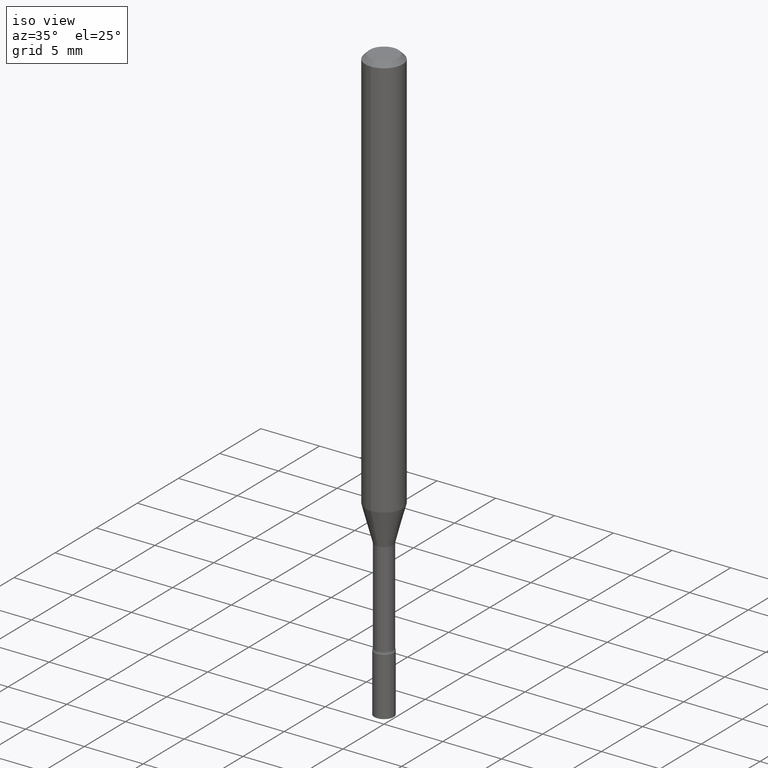
[diagram: clean part render]
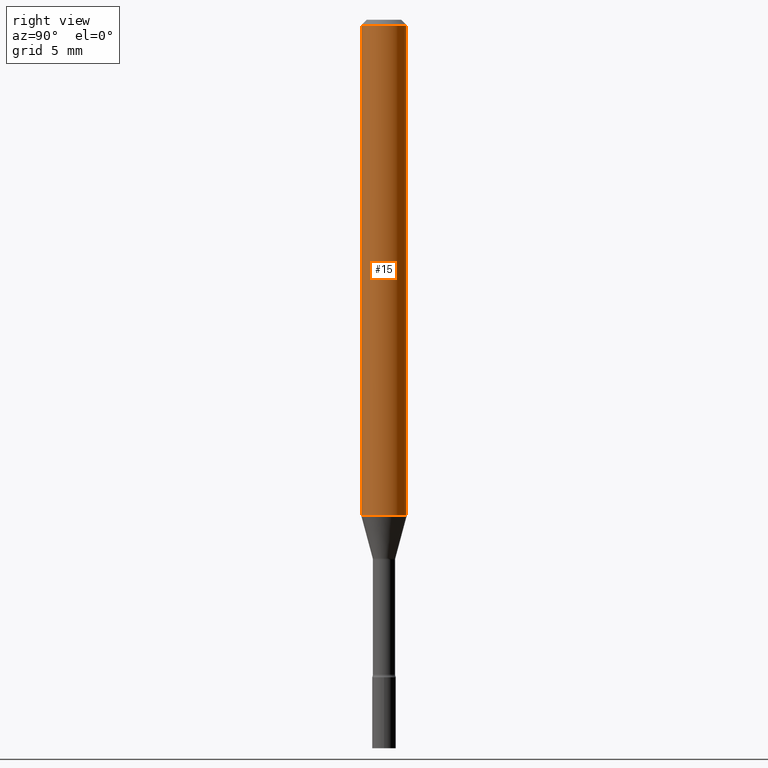
[diagram: tour spotlight — one face highlighted and labeled with its STEP entity id]
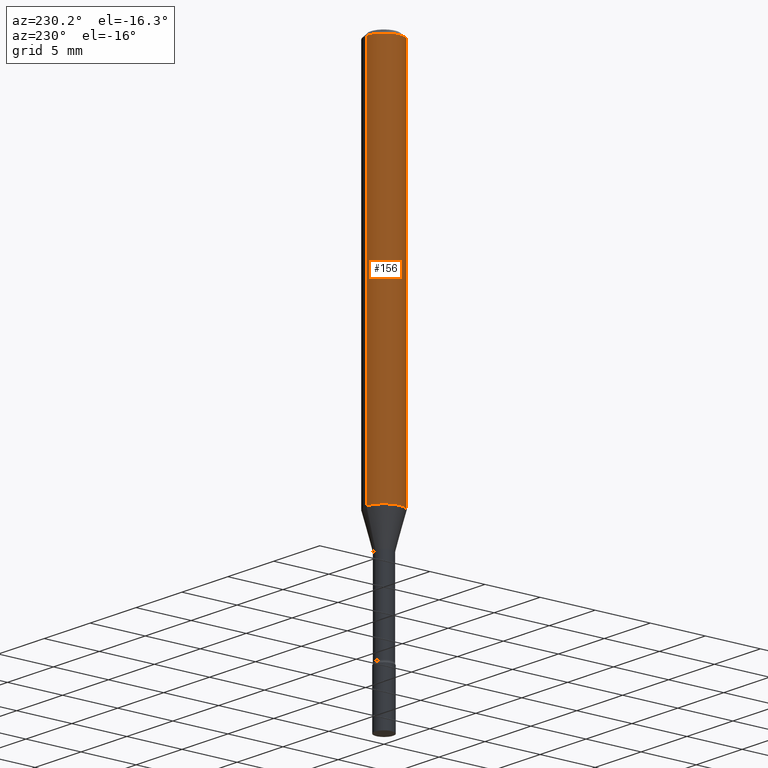
[diagram: tour spotlight — one face highlighted and labeled with its STEP entity id]
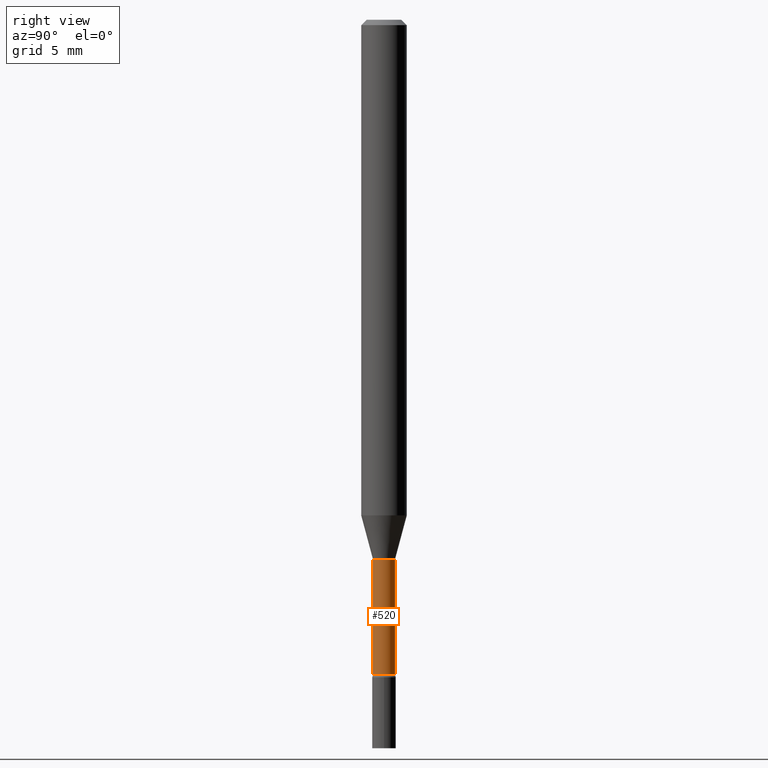
[diagram: tour spotlight — one face highlighted and labeled with its STEP entity id]
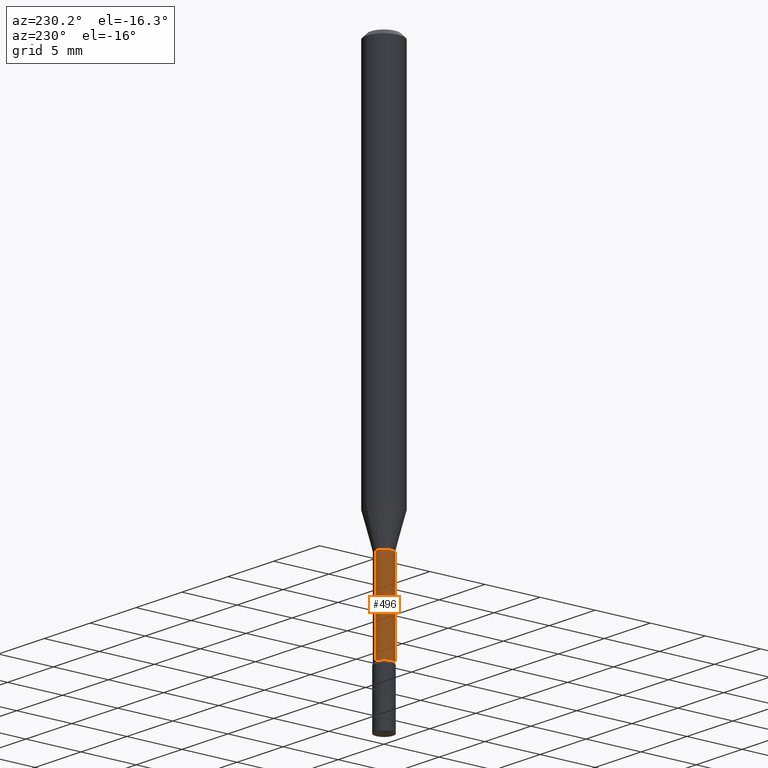
[diagram: tour spotlight — one face highlighted and labeled with its STEP entity id]
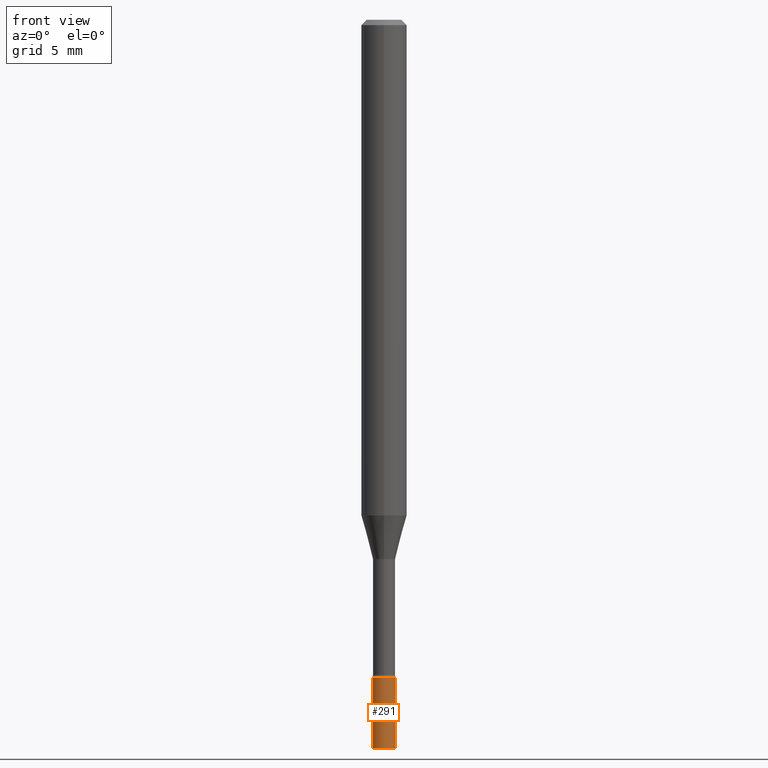
[diagram: tour spotlight — one face highlighted and labeled with its STEP entity id]
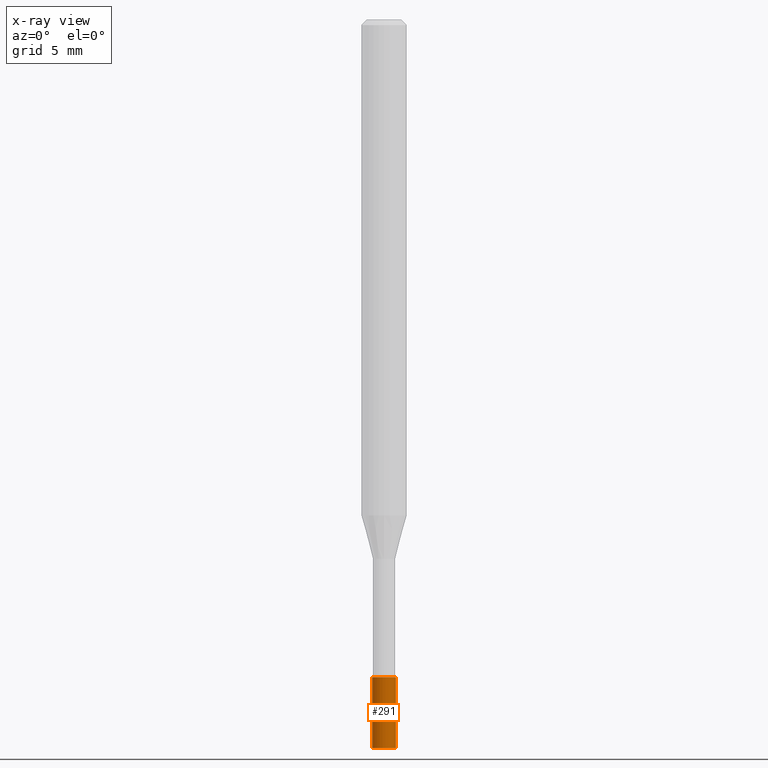
[diagram: x-ray of the same camera — body ghosted, this tour face saturated]
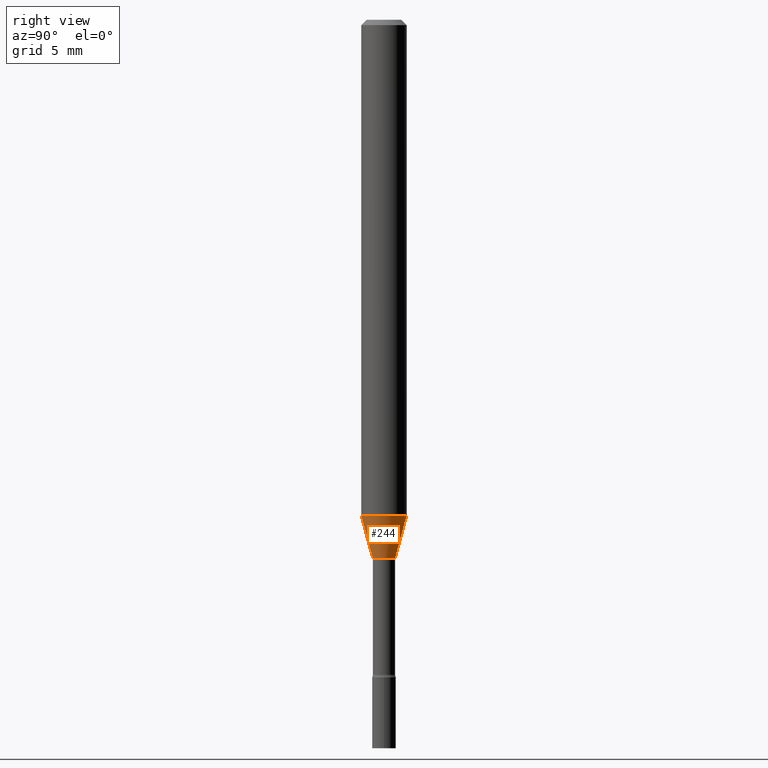
[diagram: tour spotlight — one face highlighted and labeled with its STEP entity id]
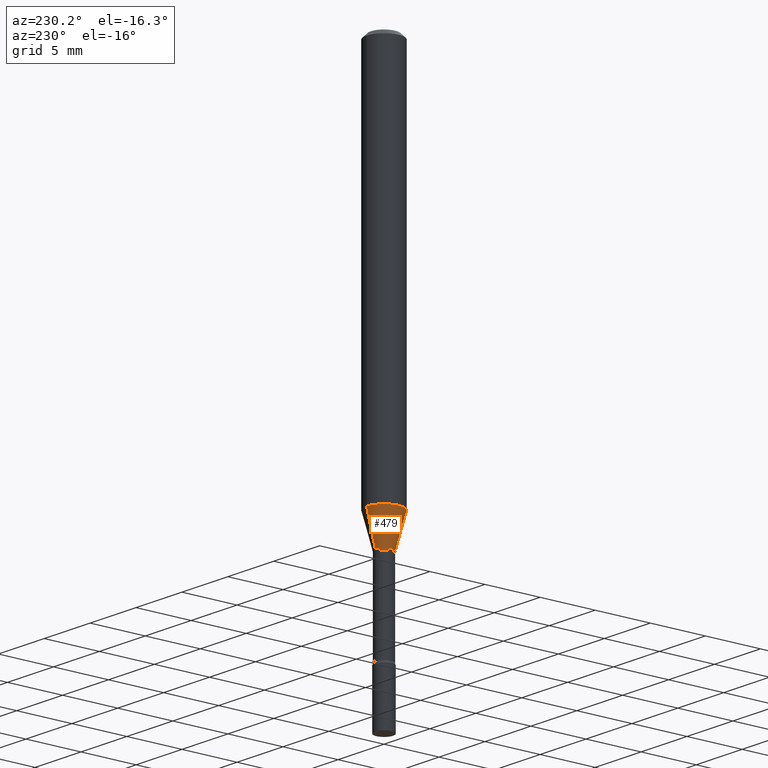
[diagram: tour spotlight — one face highlighted and labeled with its STEP entity id]
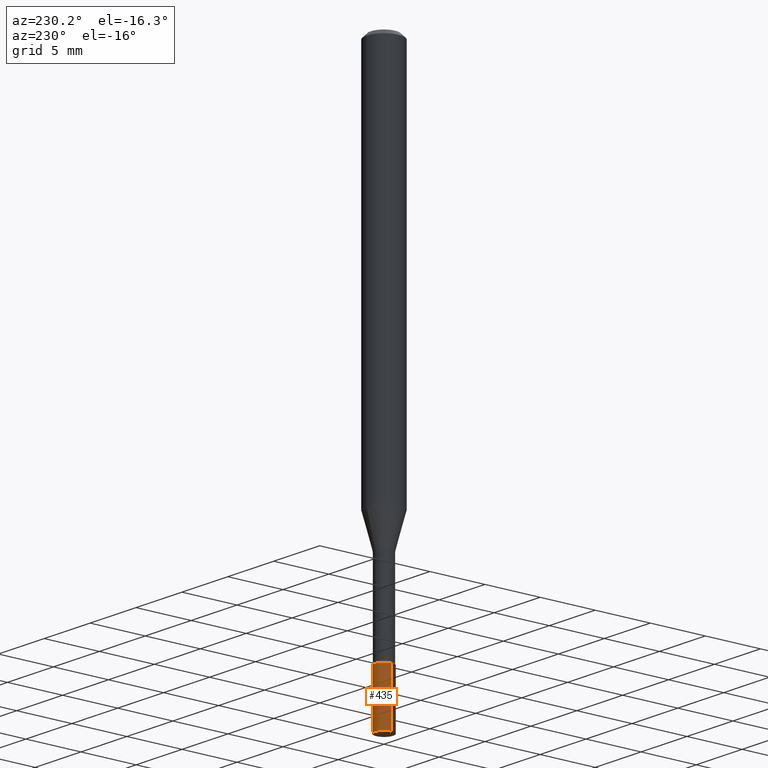
[diagram: tour spotlight — one face highlighted and labeled with its STEP entity id]
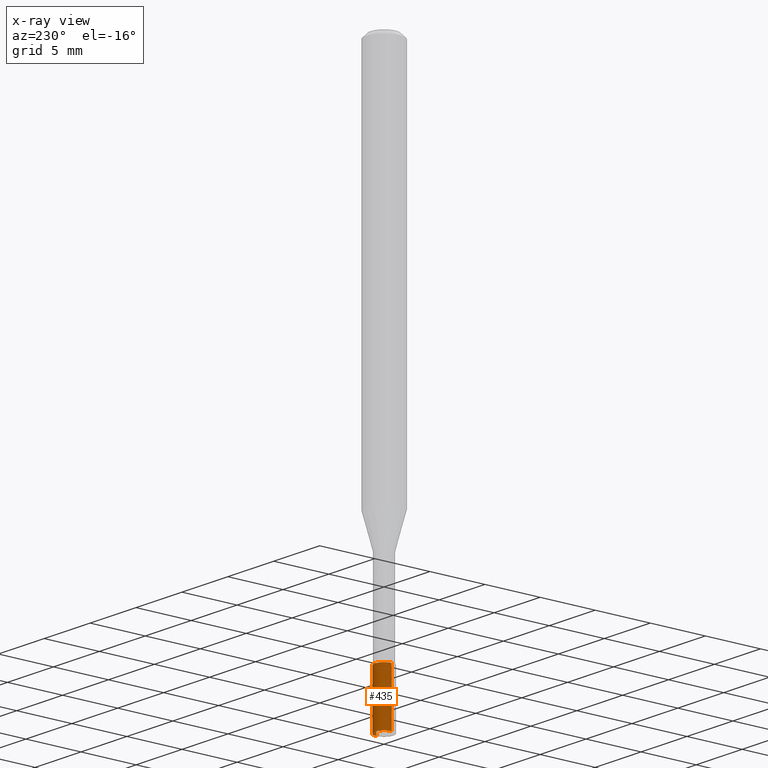
[diagram: x-ray of the same camera — body ghosted, this tour face saturated]
A machine part: a face-by-face anatomy tour. The part has 18 B-rep faces; the first image is the clean iso view, then the 8 largest visible faces are spotlighted one at a time (largest first), each with its STEP entity span.

Face 1 — right view, entity #15. In plain terms, the highlighted cylindrical surface (edge-blend (fillet) strip) has radius 1.5875 mm, axis along (-0, 0, 1).
Definition (entity closure, byte-faithful):
#15 = ADVANCED_FACE ( 'NONE', ( #234 ), #114, .T. ) ;
#47 = ORIENTED_EDGE ( 'NONE', *, *, #314, .F. ) ;
#58 = CARTESIAN_POINT ( 'NONE',  ( -4.364351673553916201E-16, -0.06250000000000000000, 2.181873595343755987E-16 ) ) ;
#63 = LINE ( 'NONE', #58, #107 ) ;
#95 = ORIENTED_EDGE ( 'NONE', *, *, #109, .T. ) ;
#97 = CARTESIAN_POINT ( 'NONE',  ( 4.440892098500956497E-16, 0.06249999999999521910, -1.360760976698174973 ) ) ;
#99 = VERTEX_POINT ( 'NONE', #315 ) ;
#107 = VECTOR ( 'NONE', #221, 39.37007874015748143 ) ;
#109 = EDGE_CURVE ( 'NONE', #379, #488, #392, .T. ) ;
#114 = CYLINDRICAL_SURFACE ( 'NONE', #318, 0.06250000000000000000 ) ;
#123 = AXIS2_PLACEMENT_3D ( 'NONE', #252, #454, #184 ) ;
#131 = CIRCLE ( 'NONE', #123, 0.06250000000000000000 ) ;
#141 = CARTESIAN_POINT ( 'NONE',  ( 3.668709739033173181E-31, -5.236496628825025190E-17, -0.01500000000000003067 ) ) ;
#145 = DIRECTION ( 'NONE',  ( -2.445806492688777345E-29, 3.490997752550010367E-15, 1.000000000000000000 ) ) ;
#155 = CARTESIAN_POINT ( 'NONE',  ( 0.000000000000000000, 0.000000000000000000, 0.000000000000000000 ) ) ;
#182 = EDGE_LOOP ( 'NONE', ( #341, #95, #381, #47 ) ) ;
#184 = DIRECTION ( 'NONE',  ( -6.982962677686265922E-15, -1.000000000000000000, 4.370956789862821150E-15 ) ) ;
#221 = DIRECTION ( 'NONE',  ( -2.445806492688777345E-29, 3.490997752550010367E-15, 1.000000000000000000 ) ) ;
#234 = FACE_OUTER_BOUND ( 'NONE', #182, .T. ) ;
#252 = CARTESIAN_POINT ( 'NONE',  ( 3.328158031805917225E-29, -4.750413511411083596E-15, -1.360760976698174529 ) ) ;
#259 = CIRCLE ( 'NONE', #443, 0.06250000000000000000 ) ;
#260 = DIRECTION ( 'NONE',  ( -6.982962677686265922E-15, -1.000000000000000000, 3.483106191921935554E-15 ) ) ;
#267 = CARTESIAN_POINT ( 'NONE',  ( 4.440892098500960442E-16, 0.06249999999999995143, -0.01500000000000024751 ) ) ;
#297 = DIRECTION ( 'NONE',  ( -2.445806492688777345E-29, 3.490997752550009973E-15, 1.000000000000000000 ) ) ;
#314 = EDGE_CURVE ( 'NONE', #99, #463, #63, .T. ) ;
#315 = CARTESIAN_POINT ( 'NONE',  ( -4.364351673553584879E-16, -0.06250000000000477396, -1.360760976698174307 ) ) ;
#318 = AXIS2_PLACEMENT_3D ( 'NONE', #155, #396, #347 ) ;
#341 = ORIENTED_EDGE ( 'NONE', *, *, #442, .T. ) ;
#347 = DIRECTION ( 'NONE',  ( -6.982962677686265922E-15, -1.000000000000000000, 3.490997752550009579E-15 ) ) ;
#379 = VERTEX_POINT ( 'NONE', #97 ) ;
#381 = ORIENTED_EDGE ( 'NONE', *, *, #390, .F. ) ;
#390 = EDGE_CURVE ( 'NONE', #463, #488, #259, .T. ) ;
#392 = LINE ( 'NONE', #470, #509 ) ;
#396 = DIRECTION ( 'NONE',  ( -2.445806492688777345E-29, 3.490997752550009973E-15, 1.000000000000000000 ) ) ;
#442 = EDGE_CURVE ( 'NONE', #99, #379, #131, .T. ) ;
#443 = AXIS2_PLACEMENT_3D ( 'NONE', #141, #297, #260 ) ;
#454 = DIRECTION ( 'NONE',  ( -2.445806492688777345E-29, 3.490997752550009973E-15, 1.000000000000000000 ) ) ;
#463 = VERTEX_POINT ( 'NONE', #490 ) ;
#470 = CARTESIAN_POINT ( 'NONE',  ( 4.440892098500625669E-16, 0.06250000000000000000, -2.181873595343755987E-16 ) ) ;
#488 = VERTEX_POINT ( 'NONE', #267 ) ;
#490 = CARTESIAN_POINT ( 'NONE',  ( -4.364351673553912750E-16, -0.06250000000000005551, -0.01499999999999981209 ) ) ;
#509 = VECTOR ( 'NONE', #145, 39.37007874015748143 ) ;

Face 2 — auxiliary view, entity #156. In plain terms, the highlighted cylindrical surface (edge-blend (fillet) strip) has radius 1.5875 mm, axis along (-0, 0, 1).
Definition (entity closure, byte-faithful):
#58 = CARTESIAN_POINT ( 'NONE',  ( -4.364351673553916201E-16, -0.06250000000000000000, 2.181873595343755987E-16 ) ) ;
#63 = LINE ( 'NONE', #58, #107 ) ;
#66 = EDGE_CURVE ( 'NONE', #379, #99, #149, .T. ) ;
#85 = DIRECTION ( 'NONE',  ( -6.982962677686265922E-15, -1.000000000000000000, 3.483106191921935554E-15 ) ) ;
#88 = DIRECTION ( 'NONE',  ( -6.982962677686265922E-15, -1.000000000000000000, 3.490997752550009579E-15 ) ) ;
#97 = CARTESIAN_POINT ( 'NONE',  ( 4.440892098500956497E-16, 0.06249999999999521910, -1.360760976698174973 ) ) ;
#99 = VERTEX_POINT ( 'NONE', #315 ) ;
#106 = ORIENTED_EDGE ( 'NONE', *, *, #109, .F. ) ;
#107 = VECTOR ( 'NONE', #221, 39.37007874015748143 ) ;
#109 = EDGE_CURVE ( 'NONE', #379, #488, #392, .T. ) ;
#110 = DIRECTION ( 'NONE',  ( -2.445806492688777345E-29, 3.490997752550009973E-15, 1.000000000000000000 ) ) ;
#145 = DIRECTION ( 'NONE',  ( -2.445806492688777345E-29, 3.490997752550010367E-15, 1.000000000000000000 ) ) ;
#149 = CIRCLE ( 'NONE', #229, 0.06250000000000000000 ) ;
#156 = ADVANCED_FACE ( 'NONE', ( #359 ), #405, .T. ) ;
#183 = AXIS2_PLACEMENT_3D ( 'NONE', #201, #445, #85 ) ;
#201 = CARTESIAN_POINT ( 'NONE',  ( 3.668709739033173181E-31, -5.236496628825025190E-17, -0.01500000000000003067 ) ) ;
#210 = CIRCLE ( 'NONE', #183, 0.06250000000000000000 ) ;
#221 = DIRECTION ( 'NONE',  ( -2.445806492688777345E-29, 3.490997752550010367E-15, 1.000000000000000000 ) ) ;
#229 = AXIS2_PLACEMENT_3D ( 'NONE', #353, #110, #507 ) ;
#261 = ORIENTED_EDGE ( 'NONE', *, *, #66, .T. ) ;
#267 = CARTESIAN_POINT ( 'NONE',  ( 4.440892098500960442E-16, 0.06249999999999995143, -0.01500000000000024751 ) ) ;
#273 = EDGE_CURVE ( 'NONE', #488, #463, #210, .T. ) ;
#284 = AXIS2_PLACEMENT_3D ( 'NONE', #487, #478, #88 ) ;
#314 = EDGE_CURVE ( 'NONE', #99, #463, #63, .T. ) ;
#315 = CARTESIAN_POINT ( 'NONE',  ( -4.364351673553584879E-16, -0.06250000000000477396, -1.360760976698174307 ) ) ;
#353 = CARTESIAN_POINT ( 'NONE',  ( 3.328158031805917225E-29, -4.750413511411083596E-15, -1.360760976698174529 ) ) ;
#359 = FACE_OUTER_BOUND ( 'NONE', #369, .T. ) ;
#369 = EDGE_LOOP ( 'NONE', ( #106, #261, #493, #500 ) ) ;
#379 = VERTEX_POINT ( 'NONE', #97 ) ;
#392 = LINE ( 'NONE', #470, #509 ) ;
#405 = CYLINDRICAL_SURFACE ( 'NONE', #284, 0.06250000000000000000 ) ;
#445 = DIRECTION ( 'NONE',  ( -2.445806492688777345E-29, 3.490997752550009973E-15, 1.000000000000000000 ) ) ;
#463 = VERTEX_POINT ( 'NONE', #490 ) ;
#470 = CARTESIAN_POINT ( 'NONE',  ( 4.440892098500625669E-16, 0.06250000000000000000, -2.181873595343755987E-16 ) ) ;
#478 = DIRECTION ( 'NONE',  ( -2.445806492688777345E-29, 3.490997752550009973E-15, 1.000000000000000000 ) ) ;
#487 = CARTESIAN_POINT ( 'NONE',  ( 0.000000000000000000, 0.000000000000000000, 0.000000000000000000 ) ) ;
#488 = VERTEX_POINT ( 'NONE', #267 ) ;
#490 = CARTESIAN_POINT ( 'NONE',  ( -4.364351673553912750E-16, -0.06250000000000005551, -0.01499999999999981209 ) ) ;
#493 = ORIENTED_EDGE ( 'NONE', *, *, #314, .T. ) ;
#500 = ORIENTED_EDGE ( 'NONE', *, *, #273, .F. ) ;
#507 = DIRECTION ( 'NONE',  ( -6.982962677686265922E-15, -1.000000000000000000, 4.370956789862821150E-15 ) ) ;
#509 = VECTOR ( 'NONE', #145, 39.37007874015748143 ) ;

Face 3 — right view, entity #520. In plain terms, the highlighted cylindrical surface (edge-blend (fillet) strip) has radius 0.776 mm, axis along (-0, 0, 1).
Definition (entity closure, byte-faithful):
#48 = AXIS2_PLACEMENT_3D ( 'NONE', #272, #397, #465 ) ;
#59 = CIRCLE ( 'NONE', #368, 0.03055000000000000077 ) ;
#78 = ORIENTED_EDGE ( 'NONE', *, *, #256, .T. ) ;
#82 = EDGE_LOOP ( 'NONE', ( #339, #78, #177, #140 ) ) ;
#86 = EDGE_CURVE ( 'NONE', #169, #135, #501, .T. ) ;
#90 = VECTOR ( 'NONE', #410, 39.37007874015748143 ) ;
#126 = EDGE_CURVE ( 'NONE', #169, #278, #355, .T. ) ;
#135 = VERTEX_POINT ( 'NONE', #312 ) ;
#136 = DIRECTION ( 'NONE',  ( -2.445806492688777345E-29, 3.490997752550009973E-15, 1.000000000000000000 ) ) ;
#138 = VECTOR ( 'NONE', #276, 39.37007874015748143 ) ;
#140 = ORIENTED_EDGE ( 'NONE', *, *, #126, .F. ) ;
#142 = VERTEX_POINT ( 'NONE', #196 ) ;
#164 = LINE ( 'NONE', #251, #90 ) ;
#169 = VERTEX_POINT ( 'NONE', #441 ) ;
#177 = ORIENTED_EDGE ( 'NONE', *, *, #333, .F. ) ;
#196 = CARTESIAN_POINT ( 'NONE',  ( 2.170708057747545912E-16, 0.03054999999999482088, -1.481974787463811394 ) ) ;
#197 = DIRECTION ( 'NONE',  ( -6.982962677686265922E-15, -1.000000000000000000, 3.490997752550009973E-15 ) ) ;
#230 = DIRECTION ( 'NONE',  ( -2.445806492688777345E-29, 3.490997752550009973E-15, 1.000000000000000000 ) ) ;
#248 = CARTESIAN_POINT ( 'NONE',  ( -2.133295098032791645E-16, -0.03055000000000517371, -1.481974787463811394 ) ) ;
#251 = CARTESIAN_POINT ( 'NONE',  ( 2.170708057747105136E-16, 0.03054999999999999036, -1.066499813404027654E-16 ) ) ;
#256 = EDGE_CURVE ( 'NONE', #135, #142, #164, .T. ) ;
#272 = CARTESIAN_POINT ( 'NONE',  ( 4.396592082780858738E-29, -6.275432306581991000E-15, -1.797604224178627197 ) ) ;
#276 = DIRECTION ( 'NONE',  ( -2.445806492688777345E-29, 3.490997752550010367E-15, 1.000000000000000000 ) ) ;
#278 = VERTEX_POINT ( 'NONE', #248 ) ;
#312 = CARTESIAN_POINT ( 'NONE',  ( 2.239985974484157911E-16, 0.03054999999999371066, -1.797604224178627197 ) ) ;
#313 = CYLINDRICAL_SURFACE ( 'NONE', #409, 0.03054999999999999036 ) ;
#316 = CARTESIAN_POINT ( 'NONE',  ( -2.133295098033153535E-16, -0.03054999999999999036, 1.066499813404027654E-16 ) ) ;
#333 = EDGE_CURVE ( 'NONE', #278, #142, #59, .T. ) ;
#338 = DIRECTION ( 'NONE',  ( -6.982962677686265133E-15, -1.000000000000000000, 0.000000000000000000 ) ) ;
#339 = ORIENTED_EDGE ( 'NONE', *, *, #86, .T. ) ;
#355 = LINE ( 'NONE', #316, #138 ) ;
#368 = AXIS2_PLACEMENT_3D ( 'NONE', #462, #136, #338 ) ;
#394 = FACE_OUTER_BOUND ( 'NONE', #82, .T. ) ;
#397 = DIRECTION ( 'NONE',  ( -2.445806492688777345E-29, 3.490997752550009973E-15, 1.000000000000000000 ) ) ;
#409 = AXIS2_PLACEMENT_3D ( 'NONE', #513, #230, #197 ) ;
#410 = DIRECTION ( 'NONE',  ( -2.445806492688777345E-29, 3.490997752550010367E-15, 1.000000000000000000 ) ) ;
#441 = CARTESIAN_POINT ( 'NONE',  ( -2.133295098032713499E-16, -0.03055000000000625965, -1.797604224178627197 ) ) ;
#462 = CARTESIAN_POINT ( 'NONE',  ( 3.624623557180060645E-29, -5.173570652371943867E-15, -1.481974787463811394 ) ) ;
#465 = DIRECTION ( 'NONE',  ( -6.982962677686265922E-15, -1.000000000000000000, 0.000000000000000000 ) ) ;
#501 = CIRCLE ( 'NONE', #48, 0.03054999999999998689 ) ;
#513 = CARTESIAN_POINT ( 'NONE',  ( 0.000000000000000000, 0.000000000000000000, 0.000000000000000000 ) ) ;
#520 = ADVANCED_FACE ( 'NONE', ( #394 ), #313, .T. ) ;

Face 4 — auxiliary view, entity #496. In plain terms, the highlighted cylindrical surface (edge-blend (fillet) strip) has radius 0.776 mm, axis along (-0, 0, 1).
Definition (entity closure, byte-faithful):
#12 = CARTESIAN_POINT ( 'NONE',  ( 3.624623557180060645E-29, -5.173570652371943867E-15, -1.481974787463811394 ) ) ;
#20 = DIRECTION ( 'NONE',  ( -6.982962677686265133E-15, -1.000000000000000000, 0.000000000000000000 ) ) ;
#73 = ORIENTED_EDGE ( 'NONE', *, *, #329, .F. ) ;
#90 = VECTOR ( 'NONE', #410, 39.37007874015748143 ) ;
#103 = DIRECTION ( 'NONE',  ( -6.982962677686265922E-15, -1.000000000000000000, 0.000000000000000000 ) ) ;
#126 = EDGE_CURVE ( 'NONE', #169, #278, #355, .T. ) ;
#135 = VERTEX_POINT ( 'NONE', #312 ) ;
#138 = VECTOR ( 'NONE', #276, 39.37007874015748143 ) ;
#142 = VERTEX_POINT ( 'NONE', #196 ) ;
#164 = LINE ( 'NONE', #251, #90 ) ;
#169 = VERTEX_POINT ( 'NONE', #441 ) ;
#196 = CARTESIAN_POINT ( 'NONE',  ( 2.170708057747545912E-16, 0.03054999999999482088, -1.481974787463811394 ) ) ;
#203 = ORIENTED_EDGE ( 'NONE', *, *, #256, .F. ) ;
#248 = CARTESIAN_POINT ( 'NONE',  ( -2.133295098032791645E-16, -0.03055000000000517371, -1.481974787463811394 ) ) ;
#251 = CARTESIAN_POINT ( 'NONE',  ( 2.170708057747105136E-16, 0.03054999999999999036, -1.066499813404027654E-16 ) ) ;
#256 = EDGE_CURVE ( 'NONE', #135, #142, #164, .T. ) ;
#265 = EDGE_LOOP ( 'NONE', ( #203, #375, #414, #73 ) ) ;
#276 = DIRECTION ( 'NONE',  ( -2.445806492688777345E-29, 3.490997752550010367E-15, 1.000000000000000000 ) ) ;
#278 = VERTEX_POINT ( 'NONE', #248 ) ;
#287 = AXIS2_PLACEMENT_3D ( 'NONE', #351, #354, #475 ) ;
#294 = DIRECTION ( 'NONE',  ( -2.445806492688777345E-29, 3.490997752550009973E-15, 1.000000000000000000 ) ) ;
#312 = CARTESIAN_POINT ( 'NONE',  ( 2.239985974484157911E-16, 0.03054999999999371066, -1.797604224178627197 ) ) ;
#316 = CARTESIAN_POINT ( 'NONE',  ( -2.133295098033153535E-16, -0.03054999999999999036, 1.066499813404027654E-16 ) ) ;
#317 = FACE_OUTER_BOUND ( 'NONE', #265, .T. ) ;
#329 = EDGE_CURVE ( 'NONE', #142, #278, #502, .T. ) ;
#344 = CARTESIAN_POINT ( 'NONE',  ( 4.396592082780858738E-29, -6.275432306581991000E-15, -1.797604224178627197 ) ) ;
#351 = CARTESIAN_POINT ( 'NONE',  ( 0.000000000000000000, 0.000000000000000000, 0.000000000000000000 ) ) ;
#354 = DIRECTION ( 'NONE',  ( -2.445806492688777345E-29, 3.490997752550009973E-15, 1.000000000000000000 ) ) ;
#355 = LINE ( 'NONE', #316, #138 ) ;
#375 = ORIENTED_EDGE ( 'NONE', *, *, #451, .T. ) ;
#410 = DIRECTION ( 'NONE',  ( -2.445806492688777345E-29, 3.490997752550010367E-15, 1.000000000000000000 ) ) ;
#414 = ORIENTED_EDGE ( 'NONE', *, *, #126, .T. ) ;
#426 = CYLINDRICAL_SURFACE ( 'NONE', #287, 0.03054999999999999036 ) ;
#433 = AXIS2_PLACEMENT_3D ( 'NONE', #344, #294, #103 ) ;
#441 = CARTESIAN_POINT ( 'NONE',  ( -2.133295098032713499E-16, -0.03055000000000625965, -1.797604224178627197 ) ) ;
#451 = EDGE_CURVE ( 'NONE', #135, #169, #474, .T. ) ;
#460 = DIRECTION ( 'NONE',  ( -2.445806492688777345E-29, 3.490997752550009973E-15, 1.000000000000000000 ) ) ;
#474 = CIRCLE ( 'NONE', #433, 0.03054999999999998689 ) ;
#475 = DIRECTION ( 'NONE',  ( -6.982962677686265922E-15, -1.000000000000000000, 3.490997752550009973E-15 ) ) ;
#496 = ADVANCED_FACE ( 'NONE', ( #317 ), #426, .T. ) ;
#502 = CIRCLE ( 'NONE', #510, 0.03055000000000000077 ) ;
#510 = AXIS2_PLACEMENT_3D ( 'NONE', #12, #460, #20 ) ;

Face 5 — front view, entity #291. An x-ray twin of the same camera follows (body ghosted, this face saturated) — the face is partly hidden behind the body. In plain terms, the highlighted cylindrical surface (edge-blend (fillet) strip) has radius 0.8255 mm, axis along (-0, 0, 1).
Definition (entity closure, byte-faithful):
#16 = DIRECTION ( 'NONE',  ( 1.000000000000000000, -6.982962677686258033E-15, 0.000000000000000000 ) ) ;
#17 = VERTEX_POINT ( 'NONE', #512 ) ;
#24 = EDGE_CURVE ( 'NONE', #17, #227, #491, .T. ) ;
#29 = DIRECTION ( 'NONE',  ( 1.000000000000000000, -6.982962677686258033E-15, 0.000000000000000000 ) ) ;
#30 = VECTOR ( 'NONE', #249, 39.37007874015748143 ) ;
#38 = DIRECTION ( 'NONE',  ( -2.445468806185136597E-29, 3.491481338843145583E-15, 1.000000000000000000 ) ) ;
#51 = DIRECTION ( 'NONE',  ( -2.445468806185136597E-29, 3.491481338843145583E-15, 1.000000000000000000 ) ) ;
#60 = ORIENTED_EDGE ( 'NONE', *, *, #365, .T. ) ;
#75 = CARTESIAN_POINT ( 'NONE',  ( -0.03250000000000000111, -6.411616858027052188E-15, -1.804999999999999938 ) ) ;
#83 = CARTESIAN_POINT ( 'NONE',  ( 0.03250000000000000111, -7.209908964711093729E-15, -2.000000000000000000 ) ) ;
#133 = VERTEX_POINT ( 'NONE', #515 ) ;
#137 = VERTEX_POINT ( 'NONE', #75 ) ;
#150 = CIRCLE ( 'NONE', #277, 0.03250000000000000111 ) ;
#160 = DIRECTION ( 'NONE',  ( 1.000000000000000000, -6.982962677686265922E-15, 4.876176775795935232E-29 ) ) ;
#167 = CYLINDRICAL_SURFACE ( 'NONE', #293, 0.03250000000000000111 ) ;
#168 = LINE ( 'NONE', #321, #30 ) ;
#178 = LINE ( 'NONE', #456, #483 ) ;
#204 = EDGE_CURVE ( 'NONE', #17, #137, #168, .T. ) ;
#215 = ORIENTED_EDGE ( 'NONE', *, *, #360, .F. ) ;
#224 = DIRECTION ( 'NONE',  ( -2.445468806185136877E-29, 3.491481338843145188E-15, 1.000000000000000000 ) ) ;
#225 = ORIENTED_EDGE ( 'NONE', *, *, #24, .T. ) ;
#227 = VERTEX_POINT ( 'NONE', #83 ) ;
#249 = DIRECTION ( 'NONE',  ( -2.445468806185136877E-29, 3.491481338843145188E-15, 1.000000000000000000 ) ) ;
#258 = AXIS2_PLACEMENT_3D ( 'NONE', #389, #38, #29 ) ;
#263 = EDGE_LOOP ( 'NONE', ( #439, #225, #60, #215 ) ) ;
#277 = AXIS2_PLACEMENT_3D ( 'NONE', #299, #413, #16 ) ;
#291 = ADVANCED_FACE ( 'NONE', ( #367 ), #167, .T. ) ;
#293 = AXIS2_PLACEMENT_3D ( 'NONE', #328, #51, #160 ) ;
#299 = CARTESIAN_POINT ( 'NONE',  ( 4.414071195164171423E-29, -6.302123816611877952E-15, -1.804999999999999938 ) ) ;
#321 = CARTESIAN_POINT ( 'NONE',  ( -0.03250000000000000111, 2.309263891220325683E-16, -1.598653904332844407E-30 ) ) ;
#328 = CARTESIAN_POINT ( 'NONE',  ( 0.000000000000000000, 0.000000000000000000, 0.000000000000000000 ) ) ;
#360 = EDGE_CURVE ( 'NONE', #137, #133, #150, .T. ) ;
#365 = EDGE_CURVE ( 'NONE', #227, #133, #178, .T. ) ;
#367 = FACE_OUTER_BOUND ( 'NONE', #263, .T. ) ;
#389 = CARTESIAN_POINT ( 'NONE',  ( 4.890937612370273194E-29, -6.982962677686291165E-15, -2.000000000000000000 ) ) ;
#413 = DIRECTION ( 'NONE',  ( -2.445468806185136597E-29, 3.491481338843145583E-15, 1.000000000000000000 ) ) ;
#439 = ORIENTED_EDGE ( 'NONE', *, *, #204, .F. ) ;
#456 = CARTESIAN_POINT ( 'NONE',  ( 0.03250000000000000111, -2.269462870248036484E-16, 1.584757452133678993E-30 ) ) ;
#483 = VECTOR ( 'NONE', #224, 39.37007874015748143 ) ;
#491 = CIRCLE ( 'NONE', #258, 0.03250000000000000111 ) ;
#512 = CARTESIAN_POINT ( 'NONE',  ( -0.03250000000000000111, -6.411616858027052188E-15, -2.000000000000000000 ) ) ;
#515 = CARTESIAN_POINT ( 'NONE',  ( 0.03250000000000000111, -6.529070103636681305E-15, -1.804999999999999938 ) ) ;

Face 6 — right view, entity #244. In plain terms, the highlighted conical surface has half-angle 15 deg.
Definition (entity closure, byte-faithful):
#46 = CARTESIAN_POINT ( 'NONE',  ( 2.207024792658457989E-16, 0.03106111260565874721, -1.478092501787273694 ) ) ;
#68 = EDGE_LOOP ( 'NONE', ( #245, #412, #446, #388 ) ) ;
#76 = CONICAL_SURFACE ( 'NONE', #432, 0.03106111260566390975, 0.2617993877991491858 ) ;
#81 = DIRECTION ( 'NONE',  ( 1.839019923739592821E-15, 0.2588190451025239036, 0.9659258262890675351 ) ) ;
#97 = CARTESIAN_POINT ( 'NONE',  ( 4.440892098500956497E-16, 0.06249999999999521910, -1.360760976698174973 ) ) ;
#99 = VERTEX_POINT ( 'NONE', #315 ) ;
#121 = DIRECTION ( 'NONE',  ( -1.807323732225322645E-15, -0.2588190451025171313, 0.9659258262890693114 ) ) ;
#123 = AXIS2_PLACEMENT_3D ( 'NONE', #252, #454, #184 ) ;
#131 = CIRCLE ( 'NONE', #123, 0.06250000000000000000 ) ;
#132 = CARTESIAN_POINT ( 'NONE',  ( 3.615128237665912091E-29, -5.160017601800393003E-15, -1.478092501787273694 ) ) ;
#146 = EDGE_CURVE ( 'NONE', #298, #99, #270, .T. ) ;
#184 = DIRECTION ( 'NONE',  ( -6.982962677686265922E-15, -1.000000000000000000, 4.370956789862821150E-15 ) ) ;
#202 = CARTESIAN_POINT ( 'NONE',  ( -2.168985900527253100E-16, -0.03106111260566906881, -1.478092501787273694 ) ) ;
#205 = FACE_OUTER_BOUND ( 'NONE', #68, .T. ) ;
#244 = ADVANCED_FACE ( 'NONE', ( #205 ), #76, .T. ) ;
#245 = ORIENTED_EDGE ( 'NONE', *, *, #472, .T. ) ;
#252 = CARTESIAN_POINT ( 'NONE',  ( 3.328158031805917225E-29, -4.750413511411083596E-15, -1.360760976698174529 ) ) ;
#266 = EDGE_CURVE ( 'NONE', #424, #379, #283, .T. ) ;
#268 = AXIS2_PLACEMENT_3D ( 'NONE', #132, #452, #411 ) ;
#270 = LINE ( 'NONE', #322, #518 ) ;
#283 = LINE ( 'NONE', #46, #408 ) ;
#298 = VERTEX_POINT ( 'NONE', #202 ) ;
#315 = CARTESIAN_POINT ( 'NONE',  ( -4.364351673553584879E-16, -0.06250000000000477396, -1.360760976698174307 ) ) ;
#322 = CARTESIAN_POINT ( 'NONE',  ( -2.168985900527253100E-16, -0.03106111260566906881, -1.478092501787273694 ) ) ;
#330 = DIRECTION ( 'NONE',  ( -2.445806492688777345E-29, 3.490997752550009973E-15, 1.000000000000000000 ) ) ;
#340 = CARTESIAN_POINT ( 'NONE',  ( 3.323958445579708599E-16, 0.03106111260565874721, -1.478092501787273694 ) ) ;
#379 = VERTEX_POINT ( 'NONE', #97 ) ;
#388 = ORIENTED_EDGE ( 'NONE', *, *, #146, .F. ) ;
#399 = CIRCLE ( 'NONE', #268, 0.03106111260566390975 ) ;
#407 = DIRECTION ( 'NONE',  ( -6.982962677686265922E-15, -1.000000000000000000, 0.000000000000000000 ) ) ;
#408 = VECTOR ( 'NONE', #81, 39.37007874015748854 ) ;
#411 = DIRECTION ( 'NONE',  ( -6.982962677686265922E-15, -1.000000000000000000, 0.000000000000000000 ) ) ;
#412 = ORIENTED_EDGE ( 'NONE', *, *, #266, .T. ) ;
#424 = VERTEX_POINT ( 'NONE', #340 ) ;
#432 = AXIS2_PLACEMENT_3D ( 'NONE', #447, #330, #407 ) ;
#442 = EDGE_CURVE ( 'NONE', #99, #379, #131, .T. ) ;
#446 = ORIENTED_EDGE ( 'NONE', *, *, #442, .F. ) ;
#447 = CARTESIAN_POINT ( 'NONE',  ( 3.615128237665912091E-29, -5.160017601800393003E-15, -1.478092501787273694 ) ) ;
#452 = DIRECTION ( 'NONE',  ( -2.445806492688777345E-29, 3.490997752550009973E-15, 1.000000000000000000 ) ) ;
#454 = DIRECTION ( 'NONE',  ( -2.445806492688777345E-29, 3.490997752550009973E-15, 1.000000000000000000 ) ) ;
#472 = EDGE_CURVE ( 'NONE', #298, #424, #399, .T. ) ;
#518 = VECTOR ( 'NONE', #121, 39.37007874015748854 ) ;

Face 7 — auxiliary view, entity #479. In plain terms, the highlighted conical surface has half-angle 15 deg.
Definition (entity closure, byte-faithful):
#46 = CARTESIAN_POINT ( 'NONE',  ( 2.207024792658457989E-16, 0.03106111260565874721, -1.478092501787273694 ) ) ;
#52 = ORIENTED_EDGE ( 'NONE', *, *, #266, .F. ) ;
#54 = FACE_OUTER_BOUND ( 'NONE', #471, .T. ) ;
#66 = EDGE_CURVE ( 'NONE', #379, #99, #149, .T. ) ;
#69 = AXIS2_PLACEMENT_3D ( 'NONE', #485, #127, #290 ) ;
#81 = DIRECTION ( 'NONE',  ( 1.839019923739592821E-15, 0.2588190451025239036, 0.9659258262890675351 ) ) ;
#97 = CARTESIAN_POINT ( 'NONE',  ( 4.440892098500956497E-16, 0.06249999999999521910, -1.360760976698174973 ) ) ;
#99 = VERTEX_POINT ( 'NONE', #315 ) ;
#105 = DIRECTION ( 'NONE',  ( -2.445806492688777345E-29, 3.490997752550009973E-15, 1.000000000000000000 ) ) ;
#110 = DIRECTION ( 'NONE',  ( -2.445806492688777345E-29, 3.490997752550009973E-15, 1.000000000000000000 ) ) ;
#115 = CONICAL_SURFACE ( 'NONE', #492, 0.03106111260566390975, 0.2617993877991491858 ) ;
#121 = DIRECTION ( 'NONE',  ( -1.807323732225322645E-15, -0.2588190451025171313, 0.9659258262890693114 ) ) ;
#127 = DIRECTION ( 'NONE',  ( -2.445806492688777345E-29, 3.490997752550009973E-15, 1.000000000000000000 ) ) ;
#146 = EDGE_CURVE ( 'NONE', #298, #99, #270, .T. ) ;
#147 = DIRECTION ( 'NONE',  ( -6.982962677686265922E-15, -1.000000000000000000, 0.000000000000000000 ) ) ;
#149 = CIRCLE ( 'NONE', #229, 0.06250000000000000000 ) ;
#202 = CARTESIAN_POINT ( 'NONE',  ( -2.168985900527253100E-16, -0.03106111260566906881, -1.478092501787273694 ) ) ;
#229 = AXIS2_PLACEMENT_3D ( 'NONE', #353, #110, #507 ) ;
#232 = ORIENTED_EDGE ( 'NONE', *, *, #296, .T. ) ;
#237 = CARTESIAN_POINT ( 'NONE',  ( 3.615128237665912091E-29, -5.160017601800393003E-15, -1.478092501787273694 ) ) ;
#266 = EDGE_CURVE ( 'NONE', #424, #379, #283, .T. ) ;
#270 = LINE ( 'NONE', #322, #518 ) ;
#283 = LINE ( 'NONE', #46, #408 ) ;
#290 = DIRECTION ( 'NONE',  ( -6.982962677686265922E-15, -1.000000000000000000, 0.000000000000000000 ) ) ;
#296 = EDGE_CURVE ( 'NONE', #424, #298, #385, .T. ) ;
#298 = VERTEX_POINT ( 'NONE', #202 ) ;
#300 = ORIENTED_EDGE ( 'NONE', *, *, #66, .F. ) ;
#315 = CARTESIAN_POINT ( 'NONE',  ( -4.364351673553584879E-16, -0.06250000000000477396, -1.360760976698174307 ) ) ;
#322 = CARTESIAN_POINT ( 'NONE',  ( -2.168985900527253100E-16, -0.03106111260566906881, -1.478092501787273694 ) ) ;
#340 = CARTESIAN_POINT ( 'NONE',  ( 3.323958445579708599E-16, 0.03106111260565874721, -1.478092501787273694 ) ) ;
#353 = CARTESIAN_POINT ( 'NONE',  ( 3.328158031805917225E-29, -4.750413511411083596E-15, -1.360760976698174529 ) ) ;
#379 = VERTEX_POINT ( 'NONE', #97 ) ;
#385 = CIRCLE ( 'NONE', #69, 0.03106111260566390975 ) ;
#408 = VECTOR ( 'NONE', #81, 39.37007874015748854 ) ;
#424 = VERTEX_POINT ( 'NONE', #340 ) ;
#431 = ORIENTED_EDGE ( 'NONE', *, *, #146, .T. ) ;
#471 = EDGE_LOOP ( 'NONE', ( #52, #232, #431, #300 ) ) ;
#479 = ADVANCED_FACE ( 'NONE', ( #54 ), #115, .T. ) ;
#485 = CARTESIAN_POINT ( 'NONE',  ( 3.615128237665912091E-29, -5.160017601800393003E-15, -1.478092501787273694 ) ) ;
#492 = AXIS2_PLACEMENT_3D ( 'NONE', #237, #105, #147 ) ;
#507 = DIRECTION ( 'NONE',  ( -6.982962677686265922E-15, -1.000000000000000000, 4.370956789862821150E-15 ) ) ;
#518 = VECTOR ( 'NONE', #121, 39.37007874015748854 ) ;

Face 8 — auxiliary view, entity #435. An x-ray twin of the same camera follows (body ghosted, this face saturated) — the face is partly hidden behind the body. In plain terms, the highlighted cylindrical surface (edge-blend (fillet) strip) has radius 0.8255 mm, axis along (-0, 0, 1).
Definition (entity closure, byte-faithful):
#17 = VERTEX_POINT ( 'NONE', #512 ) ;
#26 = DIRECTION ( 'NONE',  ( 1.000000000000000000, -6.982962677686258033E-15, 0.000000000000000000 ) ) ;
#28 = CARTESIAN_POINT ( 'NONE',  ( 4.414071195164171423E-29, -6.302123816611877952E-15, -1.804999999999999938 ) ) ;
#30 = VECTOR ( 'NONE', #249, 39.37007874015748143 ) ;
#75 = CARTESIAN_POINT ( 'NONE',  ( -0.03250000000000000111, -6.411616858027052188E-15, -1.804999999999999938 ) ) ;
#83 = CARTESIAN_POINT ( 'NONE',  ( 0.03250000000000000111, -7.209908964711093729E-15, -2.000000000000000000 ) ) ;
#94 = CARTESIAN_POINT ( 'NONE',  ( 4.890937612370273194E-29, -6.982962677686291165E-15, -2.000000000000000000 ) ) ;
#133 = VERTEX_POINT ( 'NONE', #515 ) ;
#137 = VERTEX_POINT ( 'NONE', #75 ) ;
#161 = ORIENTED_EDGE ( 'NONE', *, *, #204, .T. ) ;
#166 = AXIS2_PLACEMENT_3D ( 'NONE', #94, #497, #503 ) ;
#168 = LINE ( 'NONE', #321, #30 ) ;
#178 = LINE ( 'NONE', #456, #483 ) ;
#185 = AXIS2_PLACEMENT_3D ( 'NONE', #383, #216, #373 ) ;
#204 = EDGE_CURVE ( 'NONE', #17, #137, #168, .T. ) ;
#216 = DIRECTION ( 'NONE',  ( -2.445468806185136597E-29, 3.491481338843145583E-15, 1.000000000000000000 ) ) ;
#224 = DIRECTION ( 'NONE',  ( -2.445468806185136877E-29, 3.491481338843145188E-15, 1.000000000000000000 ) ) ;
#226 = FACE_OUTER_BOUND ( 'NONE', #331, .T. ) ;
#227 = VERTEX_POINT ( 'NONE', #83 ) ;
#240 = ORIENTED_EDGE ( 'NONE', *, *, #345, .T. ) ;
#249 = DIRECTION ( 'NONE',  ( -2.445468806185136877E-29, 3.491481338843145188E-15, 1.000000000000000000 ) ) ;
#262 = CYLINDRICAL_SURFACE ( 'NONE', #185, 0.03250000000000000111 ) ;
#311 = AXIS2_PLACEMENT_3D ( 'NONE', #28, #348, #26 ) ;
#320 = CIRCLE ( 'NONE', #311, 0.03250000000000000111 ) ;
#321 = CARTESIAN_POINT ( 'NONE',  ( -0.03250000000000000111, 2.309263891220325683E-16, -1.598653904332844407E-30 ) ) ;
#331 = EDGE_LOOP ( 'NONE', ( #240, #161, #436, #418 ) ) ;
#345 = EDGE_CURVE ( 'NONE', #227, #17, #450, .T. ) ;
#348 = DIRECTION ( 'NONE',  ( -2.445468806185136597E-29, 3.491481338843145583E-15, 1.000000000000000000 ) ) ;
#365 = EDGE_CURVE ( 'NONE', #227, #133, #178, .T. ) ;
#373 = DIRECTION ( 'NONE',  ( 1.000000000000000000, -6.982962677686265922E-15, 4.876176775795935232E-29 ) ) ;
#383 = CARTESIAN_POINT ( 'NONE',  ( 0.000000000000000000, 0.000000000000000000, 0.000000000000000000 ) ) ;
#418 = ORIENTED_EDGE ( 'NONE', *, *, #365, .F. ) ;
#435 = ADVANCED_FACE ( 'NONE', ( #226 ), #262, .T. ) ;
#436 = ORIENTED_EDGE ( 'NONE', *, *, #489, .F. ) ;
#450 = CIRCLE ( 'NONE', #166, 0.03250000000000000111 ) ;
#456 = CARTESIAN_POINT ( 'NONE',  ( 0.03250000000000000111, -2.269462870248036484E-16, 1.584757452133678993E-30 ) ) ;
#483 = VECTOR ( 'NONE', #224, 39.37007874015748143 ) ;
#489 = EDGE_CURVE ( 'NONE', #133, #137, #320, .T. ) ;
#497 = DIRECTION ( 'NONE',  ( -2.445468806185136597E-29, 3.491481338843145583E-15, 1.000000000000000000 ) ) ;
#503 = DIRECTION ( 'NONE',  ( 1.000000000000000000, -6.982962677686258033E-15, 0.000000000000000000 ) ) ;
#512 = CARTESIAN_POINT ( 'NONE',  ( -0.03250000000000000111, -6.411616858027052188E-15, -2.000000000000000000 ) ) ;
#515 = CARTESIAN_POINT ( 'NONE',  ( 0.03250000000000000111, -6.529070103636681305E-15, -1.804999999999999938 ) ) ;